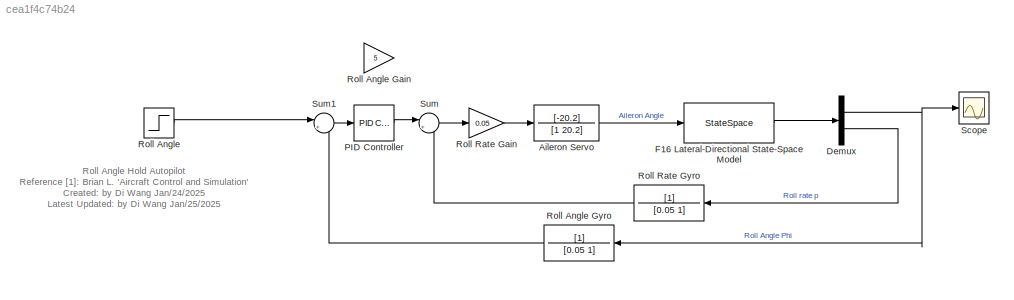
MODEL slx_cea1f4c74b24
KIND model
CONFIG AbsTol = auto
CONFIG EnableMultiTasking = off
CONFIG FixedStep = auto
CONFIG MaxStep = auto
CONFIG MinStep = auto
CONFIG RelTol = 1e-3
CONFIG SampleTimeConstraint = Unconstrained
CONFIG Solver = VariableStepAuto
CONFIG SolverName = VariableStepAuto
CONFIG StartTime = 0.0
CONFIG StopTime = 10.0
BLOCK [TransferFcn] Aileron Servo
  Denominator = [1 20.2]
  Numerator = [-20.2]
BLOCK [Demux] Demux
  DisplayOption = bar
  Outputs = 2
  Ports = [1, 2]
BLOCK [StateSpace] F16 Lateral-Directional State-Space Model
  A = [-3.2201e-1 6.404e-2 3.6382e-2 -9.9167e-1;\n     0 0 1 3.6928e-2;\n     -30.649 0 -3.6784 6.6461e-1;\n     8.5395 0 -2.5435e-2 -4.7637]
  B = [2.9506e-4; 0; -7.3331e-1; -3.1865e-2]
  C = [0 57.296 0 0;\n     0 0 57.296 0]
  D = zeros(2,1)
  InitialCondition = 0
  Ports = [1, 1]
BLOCK [Reference] PID Controller  REF=simulink/Continuous/PID Controller
  Ports = [1, 1]
  SourceBlock = simulink/Continuous/PID Controller
  SourceProductBaseCode = SL
  SourceProductName = Simulink
  SourceType = PID 1dof
BLOCK [Step] Roll Angle
  SampleTime = 0
BLOCK [Gain] Roll Angle Gain
  Gain = 5
  OutDataTypeStr = Inherit: Inherit via internal rule
  ParamDataTypeStr = Inherit: Inherit via internal rule
  SaturateOnIntegerOverflow = off
BLOCK [TransferFcn] Roll Angle Gyro
  Denominator = [0.05 1]
BLOCK [Gain] Roll Rate Gain
  Gain = 0.05
  OutDataTypeStr = Inherit: Inherit via internal rule
  ParamDataTypeStr = Inherit: Inherit via internal rule
  SaturateOnIntegerOverflow = off
BLOCK [TransferFcn] Roll Rate Gyro
  Denominator = [0.05 1]
BLOCK [Scope] Scope
  Floating = off
  NumInputPorts = 1
  Ports = [1]
  ScopeSpecificationString = Simulink.scopes.TimeScopeBlockCfg('CurrentConfiguration', extmgr.ConfigurationSet(extmgr.Configuration('Core','General UI',true),extmgr.Configuration('Core','Source UI',true),extmgr.Configuration('Sources','WiredSimulink',true),extmgr.Configuration('Visuals','Time Domain',true,'SerializedDisplays',{struct('MinYLimReal','-0.13237','MaxYLimReal','1.19134','YLabelReal','','MinYLimMag','0.00000','MaxY...<+1402ch>
BLOCK [Sum] Sum
  IconShape = round
  InputSameDT = off
  Inputs = |+-
  OutDataTypeStr = Inherit: Inherit via internal rule
  Ports = [2, 1]
  SaturateOnIntegerOverflow = off
BLOCK [Sum] Sum1
  IconShape = round
  InputSameDT = off
  Inputs = |+-
  OutDataTypeStr = Inherit: Inherit via internal rule
  Ports = [2, 1]
  SaturateOnIntegerOverflow = off
ANNOTATION (root): Roll Angle Hold Autopilot Reference [1]: Brian L. 'Aircraft Control and Simulation' Created: by Di Wang Jan/24/2025 Latest Updated: by Di Wang Jan/25/2025
LINE Aileron Servo:1 -> F16 Lateral-Directional State-Space Model:1
NET Demux:1 -> Roll Angle Gyro:1, Scope:1
LINE Demux:2 -> Roll Rate Gyro:1
LINE F16 Lateral-Directional State-Space Model:1 -> Demux:1
LINE PID Controller:1 -> Sum:1
LINE Roll Angle Gyro:1 -> Sum1:2
LINE Roll Angle:1 -> Sum1:1
LINE Roll Rate Gain:1 -> Aileron Servo:1
LINE Roll Rate Gyro:1 -> Sum:2
LINE Sum1:1 -> PID Controller:1
LINE Sum:1 -> Roll Rate Gain:1
note: NET lines group one-source signal fan-out (src -> all destinations, sorted); 1:1 wires keep LINE
